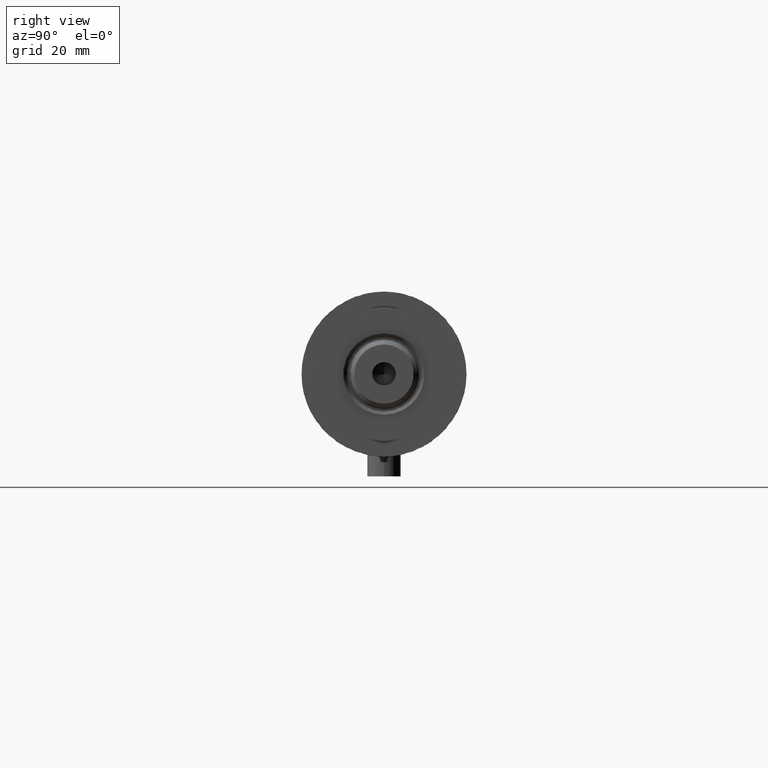
[diagram: clean part render]
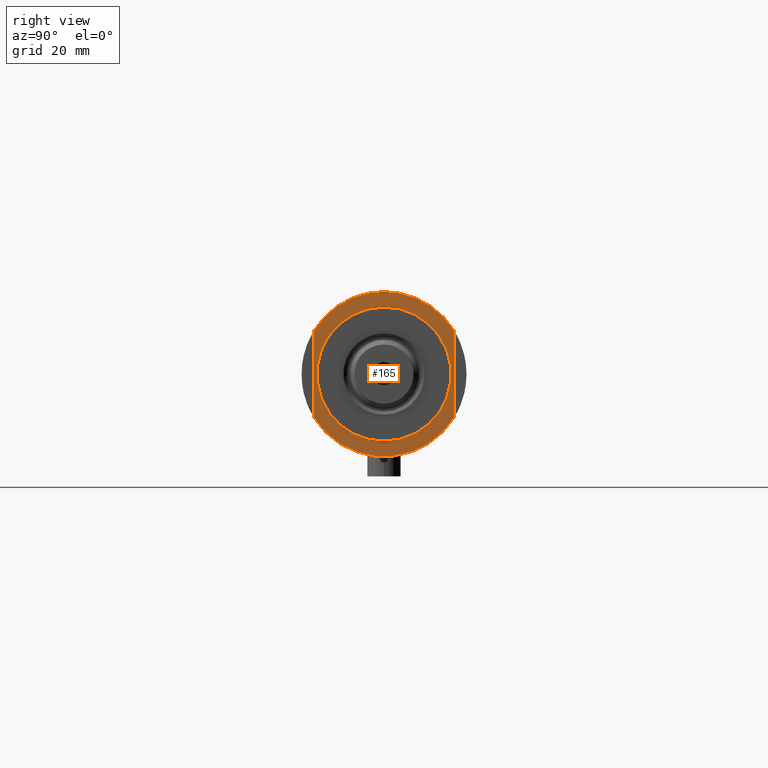
[diagram: same view with one face highlighted and labeled with its STEP entity id]
A machine part, right view. The second image highlights one B-rep face of the part: STEP entity #165.
In plain terms, the highlighted planar face has unit normal (1, 0, -0).
Its self-contained STEP definition (entity closure, byte-faithful):
#34 = EDGE_CURVE ( 'NONE', #561, #3976, #1066, .T. ) ;
#88 = VERTEX_POINT ( 'NONE', #1593 ) ;
#165 = ADVANCED_FACE ( 'NONE', ( #3996, #1258 ), #1948, .T. ) ;
#337 = CARTESIAN_POINT ( 'NONE',  ( 15.66045976336583045, -25.00000000000000000, 21.00000000000000355 ) ) ;
#355 = CARTESIAN_POINT ( 'NONE',  ( -24.00000000000000000, 2.939152317953647894E-15, 21.00000000000000000 ) ) ;
#391 = ORIENTED_EDGE ( 'NONE', *, *, #4400, .T. ) ;
#465 = DIRECTION ( 'NONE',  ( -0.000000000000000000, -0.000000000000000000, -1.000000000000000000 ) ) ;
#541 = DIRECTION ( 'NONE',  ( 1.000000000000000000, 0.000000000000000000, 0.000000000000000000 ) ) ;
#561 = VERTEX_POINT ( 'NONE', #3942 ) ;
#571 = DIRECTION ( 'NONE',  ( -1.000000000000000000, -0.000000000000000000, -0.000000000000000000 ) ) ;
#658 = AXIS2_PLACEMENT_3D ( 'NONE', #1202, #465, #2908 ) ;
#763 = ORIENTED_EDGE ( 'NONE', *, *, #3833, .T. ) ;
#871 = AXIS2_PLACEMENT_3D ( 'NONE', #4081, #2735, #996 ) ;
#890 = CARTESIAN_POINT ( 'NONE',  ( 0.000000000000000000, 0.000000000000000000, 21.00000000000000000 ) ) ;
#891 = LINE ( 'NONE', #2263, #3878 ) ;
#896 = LINE ( 'NONE', #2266, #3231 ) ;
#929 = EDGE_LOOP ( 'NONE', ( #1706, #763, #3064, #2536, #4465 ) ) ;
#996 = DIRECTION ( 'NONE',  ( 1.000000000000000000, 0.000000000000000000, 0.000000000000000000 ) ) ;
#1024 = CARTESIAN_POINT ( 'NONE',  ( -29.50000000000000355, 0.000000000000000000, 21.00000000000000000 ) ) ;
#1066 = CIRCLE ( 'NONE', #1727, 24.00000000000000000 ) ;
#1100 = EDGE_CURVE ( 'NONE', #88, #4379, #1155, .T. ) ;
#1155 = CIRCLE ( 'NONE', #3953, 29.50000000000000355 ) ;
#1202 = CARTESIAN_POINT ( 'NONE',  ( 0.000000000000000000, 0.000000000000000000, 21.00000000000000000 ) ) ;
#1258 = FACE_OUTER_BOUND ( 'NONE', #929, .T. ) ;
#1286 = DIRECTION ( 'NONE',  ( 0.000000000000000000, 0.000000000000000000, 1.000000000000000000 ) ) ;
#1358 = ORIENTED_EDGE ( 'NONE', *, *, #34, .T. ) ;
#1465 = CARTESIAN_POINT ( 'NONE',  ( 0.000000000000000000, 0.000000000000000000, 21.00000000000000000 ) ) ;
#1548 = DIRECTION ( 'NONE',  ( -0.000000000000000000, -0.000000000000000000, -1.000000000000000000 ) ) ;
#1583 = CIRCLE ( 'NONE', #1941, 29.50000000000000355 ) ;
#1593 = CARTESIAN_POINT ( 'NONE',  ( -15.66045976336583045, 24.99999999999999645, 21.00000000000000355 ) ) ;
#1634 = DIRECTION ( 'NONE',  ( 0.000000000000000000, 0.000000000000000000, 1.000000000000000000 ) ) ;
#1706 = ORIENTED_EDGE ( 'NONE', *, *, #1956, .F. ) ;
#1727 = AXIS2_PLACEMENT_3D ( 'NONE', #1465, #1548, #2830 ) ;
#1941 = AXIS2_PLACEMENT_3D ( 'NONE', #2630, #1286, #2292 ) ;
#1948 = PLANE ( 'NONE',  #3879 ) ;
#1956 = EDGE_CURVE ( 'NONE', #2798, #2135, #891, .T. ) ;
#2135 = VERTEX_POINT ( 'NONE', #2610 ) ;
#2216 = EDGE_LOOP ( 'NONE', ( #1358, #391 ) ) ;
#2236 = CIRCLE ( 'NONE', #658, 24.00000000000000000 ) ;
#2263 = CARTESIAN_POINT ( 'NONE',  ( -15.66045976336583401, -25.00000000000000000, 21.00000000000000000 ) ) ;
#2266 = CARTESIAN_POINT ( 'NONE',  ( -15.66045976336583401, 25.00000000000000000, 21.00000000000000000 ) ) ;
#2292 = DIRECTION ( 'NONE',  ( 1.000000000000000000, 0.000000000000000000, 0.000000000000000000 ) ) ;
#2395 = EDGE_CURVE ( 'NONE', #4379, #2135, #1583, .T. ) ;
#2536 = ORIENTED_EDGE ( 'NONE', *, *, #1100, .T. ) ;
#2610 = CARTESIAN_POINT ( 'NONE',  ( -15.66045976336583045, -24.99999999999999645, 20.99999999999999645 ) ) ;
#2619 = DIRECTION ( 'NONE',  ( 1.000000000000000000, 0.000000000000000000, -0.000000000000000000 ) ) ;
#2630 = CARTESIAN_POINT ( 'NONE',  ( 0.000000000000000000, 0.000000000000000000, 21.00000000000000000 ) ) ;
#2735 = DIRECTION ( 'NONE',  ( 0.000000000000000000, 0.000000000000000000, 1.000000000000000000 ) ) ;
#2756 = EDGE_CURVE ( 'NONE', #88, #4080, #896, .T. ) ;
#2798 = VERTEX_POINT ( 'NONE', #337 ) ;
#2830 = DIRECTION ( 'NONE',  ( 1.000000000000000000, 0.000000000000000000, 0.000000000000000000 ) ) ;
#2883 = CARTESIAN_POINT ( 'NONE',  ( 15.66045976336583045, 24.99999999999999645, 20.99999999999999645 ) ) ;
#2908 = DIRECTION ( 'NONE',  ( 1.000000000000000000, 0.000000000000000000, 0.000000000000000000 ) ) ;
#2962 = CARTESIAN_POINT ( 'NONE',  ( 0.000000000000000000, 0.000000000000000000, 21.00000000000000000 ) ) ;
#3064 = ORIENTED_EDGE ( 'NONE', *, *, #2756, .F. ) ;
#3231 = VECTOR ( 'NONE', #4353, 1000.000000000000000 ) ;
#3324 = DIRECTION ( 'NONE',  ( 0.000000000000000000, 0.000000000000000000, 1.000000000000000000 ) ) ;
#3833 = EDGE_CURVE ( 'NONE', #2798, #4080, #4237, .T. ) ;
#3878 = VECTOR ( 'NONE', #571, 1000.000000000000000 ) ;
#3879 = AXIS2_PLACEMENT_3D ( 'NONE', #890, #3324, #2619 ) ;
#3942 = CARTESIAN_POINT ( 'NONE',  ( 24.00000000000000000, 0.000000000000000000, 21.00000000000000000 ) ) ;
#3953 = AXIS2_PLACEMENT_3D ( 'NONE', #2962, #1634, #541 ) ;
#3976 = VERTEX_POINT ( 'NONE', #355 ) ;
#3996 = FACE_BOUND ( 'NONE', #2216, .T. ) ;
#4080 = VERTEX_POINT ( 'NONE', #2883 ) ;
#4081 = CARTESIAN_POINT ( 'NONE',  ( 0.000000000000000000, 0.000000000000000000, 21.00000000000000000 ) ) ;
#4237 = CIRCLE ( 'NONE', #871, 29.50000000000000355 ) ;
#4353 = DIRECTION ( 'NONE',  ( 1.000000000000000000, 0.000000000000000000, 0.000000000000000000 ) ) ;
#4379 = VERTEX_POINT ( 'NONE', #1024 ) ;
#4400 = EDGE_CURVE ( 'NONE', #3976, #561, #2236, .T. ) ;
#4465 = ORIENTED_EDGE ( 'NONE', *, *, #2395, .T. ) ;